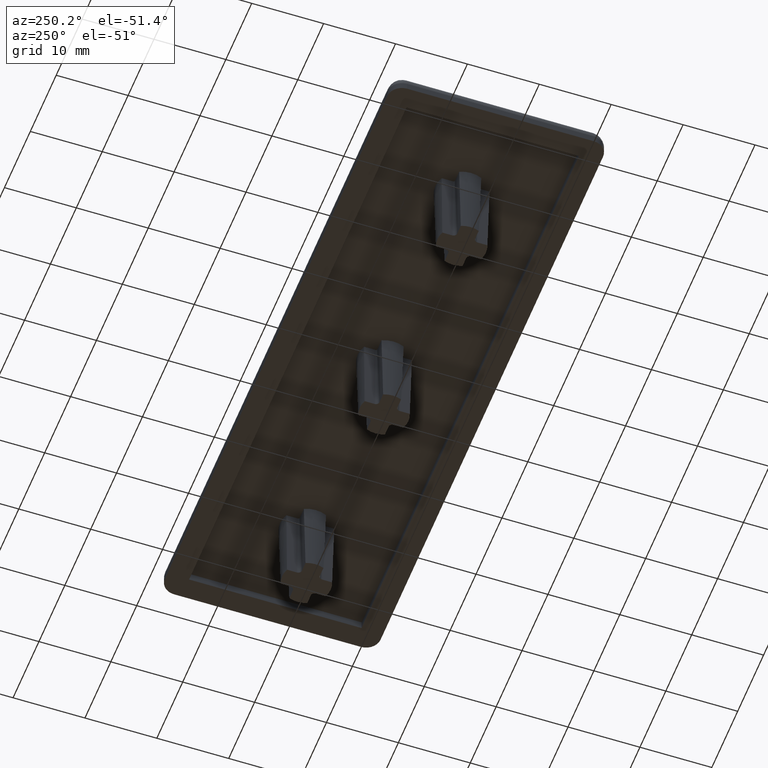
[diagram: clean part render]
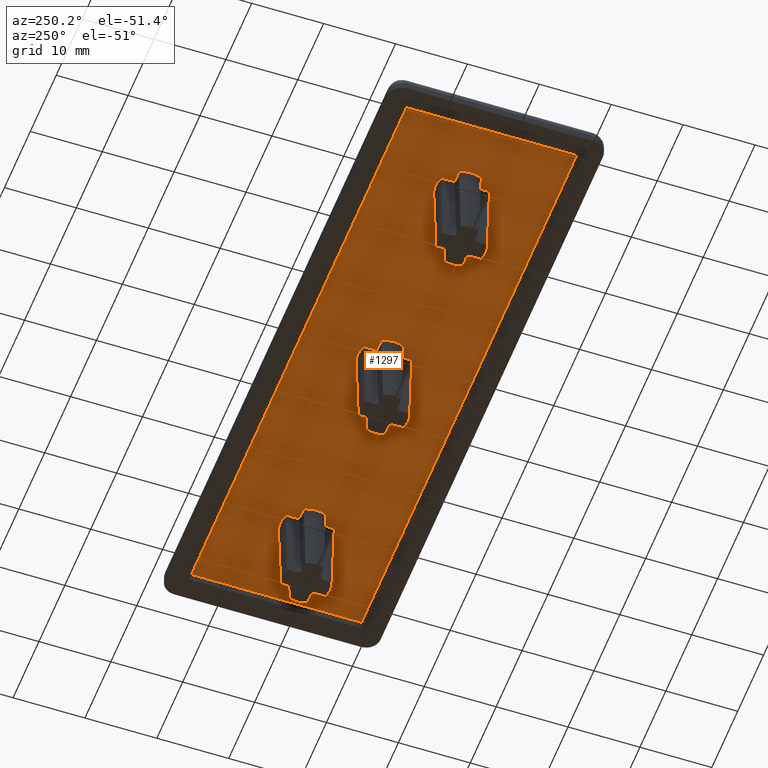
[diagram: same view with one face highlighted and labeled with its STEP entity id]
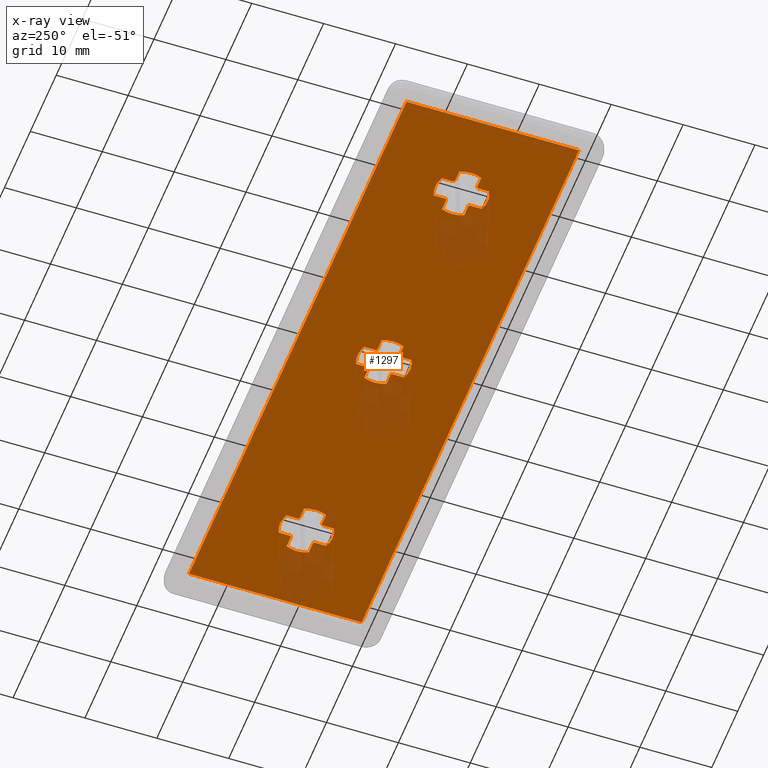
[diagram: x-ray of the same camera — body ghosted, the highlighted face saturated]
A machine part, auxiliary view. The second image highlights one B-rep face of the part: STEP entity #1297.
The next image is the same camera in x-ray: the body ghosted, the highlighted face saturated — about 7% of this face is hidden behind the body in this view.
In plain terms, the highlighted planar face has unit normal (0, 0, 1).
Its self-contained STEP definition (entity closure, byte-faithful):
#27=FACE_BOUND('',#224,.T.);
#28=FACE_BOUND('',#225,.T.);
#29=FACE_BOUND('',#226,.T.);
#87=PLANE('',#1421);
#149=FACE_OUTER_BOUND('',#223,.T.);
#223=EDGE_LOOP('',(#1093,#1094,#1095,#1096));
#224=EDGE_LOOP('',(#1097,#1098,#1099,#1100,#1101,#1102,#1103,#1104,#1105,
#1106,#1107,#1108,#1109,#1110,#1111,#1112));
#225=EDGE_LOOP('',(#1113,#1114,#1115,#1116,#1117,#1118,#1119,#1120,#1121,
#1122,#1123,#1124,#1125,#1126,#1127,#1128));
#226=EDGE_LOOP('',(#1129,#1130,#1131,#1132,#1133,#1134,#1135,#1136,#1137,
#1138,#1139,#1140,#1141,#1142,#1143,#1144));
#247=LINE('',#1849,#351);
#249=LINE('',#1865,#353);
#253=LINE('',#1877,#357);
#255=LINE('',#1893,#359);
#259=LINE('',#1905,#363);
#261=LINE('',#1921,#365);
#265=LINE('',#1933,#369);
#267=LINE('',#1948,#371);
#271=LINE('',#1962,#375);
#273=LINE('',#1978,#377);
#277=LINE('',#1990,#381);
#279=LINE('',#2006,#383);
#283=LINE('',#2018,#387);
#285=LINE('',#2034,#389);
#289=LINE('',#2046,#393);
#291=LINE('',#2061,#395);
#295=LINE('',#2075,#399);
#297=LINE('',#2091,#401);
#301=LINE('',#2103,#405);
#303=LINE('',#2119,#407);
#307=LINE('',#2131,#411);
#309=LINE('',#2147,#413);
#313=LINE('',#2159,#417);
#315=LINE('',#2174,#419);
#323=LINE('',#2193,#427);
#327=LINE('',#2200,#431);
#330=LINE('',#2206,#434);
#332=LINE('',#2209,#436);
#351=VECTOR('',#1467,1.5745024941123);
#353=VECTOR('',#1477,1.57450249411229);
#357=VECTOR('',#1489,1.5745024941123);
#359=VECTOR('',#1499,1.5745024941123);
#363=VECTOR('',#1511,1.57450249411236);
#365=VECTOR('',#1521,1.57450249411229);
#369=VECTOR('',#1533,1.5745024941123);
#371=VECTOR('',#1543,1.5745024941123);
#375=VECTOR('',#1557,1.5745024941123);
#377=VECTOR('',#1567,1.5745024941123);
#381=VECTOR('',#1579,1.5745024941123);
#383=VECTOR('',#1589,1.5745024941123);
#387=VECTOR('',#1601,1.57450249411237);
#389=VECTOR('',#1611,1.5745024941123);
#393=VECTOR('',#1623,1.5745024941123);
#395=VECTOR('',#1633,1.5745024941123);
#399=VECTOR('',#1647,1.5745024941123);
#401=VECTOR('',#1657,1.5745024941123);
#405=VECTOR('',#1669,1.5745024941123);
#407=VECTOR('',#1679,1.5745024941123);
#411=VECTOR('',#1691,1.57450249411237);
#413=VECTOR('',#1701,1.5745024941123);
#417=VECTOR('',#1713,1.5745024941123);
#419=VECTOR('',#1723,1.5745024941123);
#427=VECTOR('',#1737,24.);
#431=VECTOR('',#1743,84.);
#434=VECTOR('',#1748,24.);
#436=VECTOR('',#1752,84.);
#453=CIRCLE('',#1318,0.211954862738944);
#455=CIRCLE('',#1322,3.66304513726106);
#457=CIRCLE('',#1326,0.211954862738944);
#459=CIRCLE('',#1330,3.66304513726106);
#461=CIRCLE('',#1334,0.211954862738944);
#463=CIRCLE('',#1338,3.66304513726106);
#465=CIRCLE('',#1342,0.211954862738944);
#467=CIRCLE('',#1346,3.66304513726106);
#469=CIRCLE('',#1351,0.211954862738944);
#471=CIRCLE('',#1355,3.66304513726106);
#473=CIRCLE('',#1359,0.211954862738944);
#475=CIRCLE('',#1363,3.66304513726106);
#477=CIRCLE('',#1367,0.211954862738944);
#479=CIRCLE('',#1371,3.66304513726106);
#481=CIRCLE('',#1375,0.211954862738944);
#483=CIRCLE('',#1379,3.66304513726106);
#485=CIRCLE('',#1384,0.211954862738944);
#487=CIRCLE('',#1388,3.66304513726106);
#489=CIRCLE('',#1392,0.211954862738944);
#491=CIRCLE('',#1396,3.66304513726106);
#493=CIRCLE('',#1400,0.211954862738944);
#495=CIRCLE('',#1404,3.66304513726106);
#497=CIRCLE('',#1408,0.211954862738944);
#499=CIRCLE('',#1412,3.66304513726106);
#517=VERTEX_POINT('',#1839);
#518=VERTEX_POINT('',#1840);
#521=VERTEX_POINT('',#1848);
#523=VERTEX_POINT('',#1856);
#525=VERTEX_POINT('',#1864);
#527=VERTEX_POINT('',#1870);
#529=VERTEX_POINT('',#1876);
#531=VERTEX_POINT('',#1884);
#533=VERTEX_POINT('',#1892);
#535=VERTEX_POINT('',#1898);
#537=VERTEX_POINT('',#1904);
#539=VERTEX_POINT('',#1912);
#541=VERTEX_POINT('',#1920);
#543=VERTEX_POINT('',#1926);
#545=VERTEX_POINT('',#1932);
#547=VERTEX_POINT('',#1940);
#549=VERTEX_POINT('',#1952);
#550=VERTEX_POINT('',#1953);
#553=VERTEX_POINT('',#1961);
#555=VERTEX_POINT('',#1969);
#557=VERTEX_POINT('',#1977);
#559=VERTEX_POINT('',#1983);
#561=VERTEX_POINT('',#1989);
#563=VERTEX_POINT('',#1997);
#565=VERTEX_POINT('',#2005);
#567=VERTEX_POINT('',#2011);
#569=VERTEX_POINT('',#2017);
#571=VERTEX_POINT('',#2025);
#573=VERTEX_POINT('',#2033);
#575=VERTEX_POINT('',#2039);
#577=VERTEX_POINT('',#2045);
#579=VERTEX_POINT('',#2053);
#581=VERTEX_POINT('',#2065);
#582=VERTEX_POINT('',#2066);
#585=VERTEX_POINT('',#2074);
#587=VERTEX_POINT('',#2082);
#589=VERTEX_POINT('',#2090);
#591=VERTEX_POINT('',#2096);
#593=VERTEX_POINT('',#2102);
#595=VERTEX_POINT('',#2110);
#597=VERTEX_POINT('',#2118);
#599=VERTEX_POINT('',#2124);
#601=VERTEX_POINT('',#2130);
#603=VERTEX_POINT('',#2138);
#605=VERTEX_POINT('',#2146);
#607=VERTEX_POINT('',#2152);
#609=VERTEX_POINT('',#2158);
#611=VERTEX_POINT('',#2166);
#619=VERTEX_POINT('',#2190);
#620=VERTEX_POINT('',#2192);
#622=VERTEX_POINT('',#2198);
#624=VERTEX_POINT('',#2204);
#641=EDGE_CURVE('',#517,#518,#453,.T.);
#645=EDGE_CURVE('',#521,#517,#247,.T.);
#648=EDGE_CURVE('',#523,#521,#455,.T.);
#651=EDGE_CURVE('',#525,#523,#249,.T.);
#654=EDGE_CURVE('',#527,#525,#457,.T.);
#657=EDGE_CURVE('',#529,#527,#253,.T.);
#660=EDGE_CURVE('',#531,#529,#459,.T.);
#663=EDGE_CURVE('',#533,#531,#255,.T.);
#666=EDGE_CURVE('',#535,#533,#461,.T.);
#669=EDGE_CURVE('',#537,#535,#259,.T.);
#672=EDGE_CURVE('',#539,#537,#463,.T.);
#675=EDGE_CURVE('',#541,#539,#261,.T.);
#678=EDGE_CURVE('',#543,#541,#465,.T.);
#681=EDGE_CURVE('',#545,#543,#265,.T.);
#684=EDGE_CURVE('',#547,#545,#467,.T.);
#687=EDGE_CURVE('',#518,#547,#267,.T.);
#689=EDGE_CURVE('',#549,#550,#469,.T.);
#693=EDGE_CURVE('',#553,#549,#271,.T.);
#696=EDGE_CURVE('',#555,#553,#471,.T.);
#699=EDGE_CURVE('',#557,#555,#273,.T.);
#702=EDGE_CURVE('',#559,#557,#473,.T.);
#705=EDGE_CURVE('',#561,#559,#277,.T.);
#708=EDGE_CURVE('',#563,#561,#475,.T.);
#711=EDGE_CURVE('',#565,#563,#279,.T.);
#714=EDGE_CURVE('',#567,#565,#477,.T.);
#717=EDGE_CURVE('',#569,#567,#283,.T.);
#720=EDGE_CURVE('',#571,#569,#479,.T.);
#723=EDGE_CURVE('',#573,#571,#285,.T.);
#726=EDGE_CURVE('',#575,#573,#481,.T.);
#729=EDGE_CURVE('',#577,#575,#289,.T.);
#732=EDGE_CURVE('',#579,#577,#483,.T.);
#735=EDGE_CURVE('',#550,#579,#291,.T.);
#737=EDGE_CURVE('',#581,#582,#485,.T.);
#741=EDGE_CURVE('',#585,#581,#295,.T.);
#744=EDGE_CURVE('',#587,#585,#487,.T.);
#747=EDGE_CURVE('',#589,#587,#297,.T.);
#750=EDGE_CURVE('',#591,#589,#489,.T.);
#753=EDGE_CURVE('',#593,#591,#301,.T.);
#756=EDGE_CURVE('',#595,#593,#491,.T.);
#759=EDGE_CURVE('',#597,#595,#303,.T.);
#762=EDGE_CURVE('',#599,#597,#493,.T.);
#765=EDGE_CURVE('',#601,#599,#307,.T.);
#768=EDGE_CURVE('',#603,#601,#495,.T.);
#771=EDGE_CURVE('',#605,#603,#309,.T.);
#774=EDGE_CURVE('',#607,#605,#497,.T.);
#777=EDGE_CURVE('',#609,#607,#313,.T.);
#780=EDGE_CURVE('',#611,#609,#499,.T.);
#783=EDGE_CURVE('',#582,#611,#315,.T.);
#791=EDGE_CURVE('',#619,#620,#323,.T.);
#795=EDGE_CURVE('',#622,#619,#327,.T.);
#798=EDGE_CURVE('',#624,#622,#330,.T.);
#800=EDGE_CURVE('',#620,#624,#332,.T.);
#1093=ORIENTED_EDGE('',*,*,#800,.F.);
#1094=ORIENTED_EDGE('',*,*,#791,.F.);
#1095=ORIENTED_EDGE('',*,*,#795,.F.);
#1096=ORIENTED_EDGE('',*,*,#798,.F.);
#1097=ORIENTED_EDGE('',*,*,#641,.T.);
#1098=ORIENTED_EDGE('',*,*,#687,.T.);
#1099=ORIENTED_EDGE('',*,*,#684,.T.);
#1100=ORIENTED_EDGE('',*,*,#681,.T.);
#1101=ORIENTED_EDGE('',*,*,#678,.T.);
#1102=ORIENTED_EDGE('',*,*,#675,.T.);
#1103=ORIENTED_EDGE('',*,*,#672,.T.);
#1104=ORIENTED_EDGE('',*,*,#669,.T.);
#1105=ORIENTED_EDGE('',*,*,#666,.T.);
#1106=ORIENTED_EDGE('',*,*,#663,.T.);
#1107=ORIENTED_EDGE('',*,*,#660,.T.);
#1108=ORIENTED_EDGE('',*,*,#657,.T.);
#1109=ORIENTED_EDGE('',*,*,#654,.T.);
#1110=ORIENTED_EDGE('',*,*,#651,.T.);
#1111=ORIENTED_EDGE('',*,*,#648,.T.);
#1112=ORIENTED_EDGE('',*,*,#645,.T.);
#1113=ORIENTED_EDGE('',*,*,#689,.T.);
#1114=ORIENTED_EDGE('',*,*,#735,.T.);
#1115=ORIENTED_EDGE('',*,*,#732,.T.);
#1116=ORIENTED_EDGE('',*,*,#729,.T.);
#1117=ORIENTED_EDGE('',*,*,#726,.T.);
#1118=ORIENTED_EDGE('',*,*,#723,.T.);
#1119=ORIENTED_EDGE('',*,*,#720,.T.);
#1120=ORIENTED_EDGE('',*,*,#717,.T.);
#1121=ORIENTED_EDGE('',*,*,#714,.T.);
#1122=ORIENTED_EDGE('',*,*,#711,.T.);
#1123=ORIENTED_EDGE('',*,*,#708,.T.);
#1124=ORIENTED_EDGE('',*,*,#705,.T.);
#1125=ORIENTED_EDGE('',*,*,#702,.T.);
#1126=ORIENTED_EDGE('',*,*,#699,.T.);
#1127=ORIENTED_EDGE('',*,*,#696,.T.);
#1128=ORIENTED_EDGE('',*,*,#693,.T.);
#1129=ORIENTED_EDGE('',*,*,#759,.T.);
#1130=ORIENTED_EDGE('',*,*,#756,.T.);
#1131=ORIENTED_EDGE('',*,*,#753,.T.);
#1132=ORIENTED_EDGE('',*,*,#750,.T.);
#1133=ORIENTED_EDGE('',*,*,#747,.T.);
#1134=ORIENTED_EDGE('',*,*,#744,.T.);
#1135=ORIENTED_EDGE('',*,*,#741,.T.);
#1136=ORIENTED_EDGE('',*,*,#737,.T.);
#1137=ORIENTED_EDGE('',*,*,#783,.T.);
#1138=ORIENTED_EDGE('',*,*,#780,.T.);
#1139=ORIENTED_EDGE('',*,*,#777,.T.);
#1140=ORIENTED_EDGE('',*,*,#774,.T.);
#1141=ORIENTED_EDGE('',*,*,#771,.T.);
#1142=ORIENTED_EDGE('',*,*,#768,.T.);
#1143=ORIENTED_EDGE('',*,*,#765,.T.);
#1144=ORIENTED_EDGE('',*,*,#762,.T.);
#1297=ADVANCED_FACE('',(#149,#27,#28,#29),#87,.F.);
#1318=AXIS2_PLACEMENT_3D('',#1841,#1459,#1460);
#1322=AXIS2_PLACEMENT_3D('',#1857,#1471,#1472);
#1326=AXIS2_PLACEMENT_3D('',#1871,#1482,#1483);
#1330=AXIS2_PLACEMENT_3D('',#1885,#1493,#1494);
#1334=AXIS2_PLACEMENT_3D('',#1899,#1504,#1505);
#1338=AXIS2_PLACEMENT_3D('',#1913,#1515,#1516);
#1342=AXIS2_PLACEMENT_3D('',#1927,#1526,#1527);
#1346=AXIS2_PLACEMENT_3D('',#1941,#1537,#1538);
#1351=AXIS2_PLACEMENT_3D('',#1954,#1549,#1550);
#1355=AXIS2_PLACEMENT_3D('',#1970,#1561,#1562);
#1359=AXIS2_PLACEMENT_3D('',#1984,#1572,#1573);
#1363=AXIS2_PLACEMENT_3D('',#1998,#1583,#1584);
#1367=AXIS2_PLACEMENT_3D('',#2012,#1594,#1595);
#1371=AXIS2_PLACEMENT_3D('',#2026,#1605,#1606);
#1375=AXIS2_PLACEMENT_3D('',#2040,#1616,#1617);
#1379=AXIS2_PLACEMENT_3D('',#2054,#1627,#1628);
#1384=AXIS2_PLACEMENT_3D('',#2067,#1639,#1640);
#1388=AXIS2_PLACEMENT_3D('',#2083,#1651,#1652);
#1392=AXIS2_PLACEMENT_3D('',#2097,#1662,#1663);
#1396=AXIS2_PLACEMENT_3D('',#2111,#1673,#1674);
#1400=AXIS2_PLACEMENT_3D('',#2125,#1684,#1685);
#1404=AXIS2_PLACEMENT_3D('',#2139,#1695,#1696);
#1408=AXIS2_PLACEMENT_3D('',#2153,#1706,#1707);
#1412=AXIS2_PLACEMENT_3D('',#2167,#1717,#1718);
#1421=AXIS2_PLACEMENT_3D('',#2210,#1753,#1754);
#1459=DIRECTION('center_axis',(0.,0.,-1.));
#1460=DIRECTION('ref_axis',(0.,1.,0.));
#1467=DIRECTION('',(-1.,-2.00403575735521E-16,0.));
#1471=DIRECTION('center_axis',(0.,0.,1.));
#1472=DIRECTION('ref_axis',(-1.,0.,0.));
#1477=DIRECTION('',(1.,-2.00403575735522E-16,0.));
#1482=DIRECTION('center_axis',(0.,0.,-1.));
#1483=DIRECTION('ref_axis',(1.,0.,0.));
#1489=DIRECTION('',(0.,1.,0.));
#1493=DIRECTION('center_axis',(0.,0.,1.));
#1494=DIRECTION('ref_axis',(-1.,0.,0.));
#1499=DIRECTION('',(0.,-1.,0.));
#1504=DIRECTION('center_axis',(0.,0.,-1.));
#1505=DIRECTION('ref_axis',(0.,-1.,0.));
#1511=DIRECTION('',(1.,0.,0.));
#1515=DIRECTION('center_axis',(0.,0.,1.));
#1516=DIRECTION('ref_axis',(-1.,0.,0.));
#1521=DIRECTION('',(-1.,4.00807151471042E-16,0.));
#1526=DIRECTION('center_axis',(0.,0.,-1.));
#1527=DIRECTION('ref_axis',(-1.,0.,0.));
#1533=DIRECTION('',(0.,-1.,0.));
#1537=DIRECTION('center_axis',(0.,0.,1.));
#1538=DIRECTION('ref_axis',(-1.,0.,0.));
#1543=DIRECTION('',(0.,1.,0.));
#1549=DIRECTION('center_axis',(0.,0.,-1.));
#1550=DIRECTION('ref_axis',(0.,1.,0.));
#1557=DIRECTION('',(-1.,-2.00403575735521E-16,0.));
#1561=DIRECTION('center_axis',(0.,0.,1.));
#1562=DIRECTION('ref_axis',(-1.,0.,0.));
#1567=DIRECTION('',(1.,-2.00403575735522E-16,0.));
#1572=DIRECTION('center_axis',(0.,0.,-1.));
#1573=DIRECTION('ref_axis',(1.,0.,0.));
#1579=DIRECTION('',(0.,1.,0.));
#1583=DIRECTION('center_axis',(0.,0.,1.));
#1584=DIRECTION('ref_axis',(-1.,0.,0.));
#1589=DIRECTION('',(0.,-1.,0.));
#1594=DIRECTION('center_axis',(0.,0.,-1.));
#1595=DIRECTION('ref_axis',(0.,-1.,0.));
#1601=DIRECTION('',(1.,0.,0.));
#1605=DIRECTION('center_axis',(0.,0.,1.));
#1606=DIRECTION('ref_axis',(-1.,0.,0.));
#1611=DIRECTION('',(-1.,4.00807151471042E-16,0.));
#1616=DIRECTION('center_axis',(0.,0.,-1.));
#1617=DIRECTION('ref_axis',(-1.,0.,0.));
#1623=DIRECTION('',(0.,-1.,0.));
#1627=DIRECTION('center_axis',(0.,0.,1.));
#1628=DIRECTION('ref_axis',(-1.,0.,0.));
#1633=DIRECTION('',(0.,1.,0.));
#1639=DIRECTION('center_axis',(0.,0.,-1.));
#1640=DIRECTION('ref_axis',(0.,1.,0.));
#1647=DIRECTION('',(-1.,-2.00403575735521E-16,0.));
#1651=DIRECTION('center_axis',(0.,0.,1.));
#1652=DIRECTION('ref_axis',(-1.,0.,0.));
#1657=DIRECTION('',(1.,-2.00403575735522E-16,0.));
#1662=DIRECTION('center_axis',(0.,0.,-1.));
#1663=DIRECTION('ref_axis',(1.,0.,0.));
#1669=DIRECTION('',(0.,1.,0.));
#1673=DIRECTION('center_axis',(0.,0.,1.));
#1674=DIRECTION('ref_axis',(-1.,0.,0.));
#1679=DIRECTION('',(0.,-1.,0.));
#1684=DIRECTION('center_axis',(0.,0.,-1.));
#1685=DIRECTION('ref_axis',(0.,-1.,0.));
#1691=DIRECTION('',(1.,0.,0.));
#1695=DIRECTION('center_axis',(0.,0.,1.));
#1696=DIRECTION('ref_axis',(-1.,0.,0.));
#1701=DIRECTION('',(-1.,4.00807151471042E-16,0.));
#1706=DIRECTION('center_axis',(0.,0.,-1.));
#1707=DIRECTION('ref_axis',(-1.,0.,0.));
#1713=DIRECTION('',(0.,-1.,0.));
#1717=DIRECTION('center_axis',(0.,0.,1.));
#1718=DIRECTION('ref_axis',(-1.,0.,0.));
#1723=DIRECTION('',(0.,1.,0.));
#1737=DIRECTION('',(0.,1.,0.));
#1743=DIRECTION('',(1.,-2.37904933848248E-16,0.));
#1748=DIRECTION('',(0.,-1.,0.));
#1752=DIRECTION('',(-1.,1.05735526154777E-16,0.));
#1753=DIRECTION('center_axis',(0.,0.,1.));
#1754=DIRECTION('ref_axis',(1.,0.,0.));
#1839=CARTESIAN_POINT('',(-28.25,1.53804513726106,1.2));
#1840=CARTESIAN_POINT('',(-28.4619548627389,1.75,1.2));
#1841=CARTESIAN_POINT('Origin',(-28.25,1.75,1.2));
#1848=CARTESIAN_POINT('',(-26.6754975058877,1.53804513726106,1.2));
#1849=CARTESIAN_POINT('',(-14.125,1.53804513726106,1.2));
#1856=CARTESIAN_POINT('',(-26.6754975058877,-1.53804513726106,1.2));
#1857=CARTESIAN_POINT('Origin',(-30.,0.,1.2));
#1864=CARTESIAN_POINT('',(-28.25,-1.53804513726106,1.2));
#1865=CARTESIAN_POINT('',(-13.4325079745019,-1.53804513726106,1.2));
#1870=CARTESIAN_POINT('',(-28.4619548627389,-1.75,1.2));
#1871=CARTESIAN_POINT('Origin',(-28.25,-1.75,1.2));
#1876=CARTESIAN_POINT('',(-28.4619548627389,-3.3245024941123,1.2));
#1877=CARTESIAN_POINT('',(-28.4619548627389,-0.875000000000001,1.2));
#1884=CARTESIAN_POINT('',(-31.5380451372611,-3.3245024941123,1.2));
#1885=CARTESIAN_POINT('Origin',(-30.,0.,1.2));
#1892=CARTESIAN_POINT('',(-31.5380451372611,-1.75,1.2));
#1893=CARTESIAN_POINT('',(-31.5380451372611,-1.56749202549806,1.2));
#1898=CARTESIAN_POINT('',(-31.75,-1.53804513726106,1.2));
#1899=CARTESIAN_POINT('Origin',(-31.75,-1.75,1.2));
#1904=CARTESIAN_POINT('',(-33.3245024941124,-1.53804513726106,1.2));
#1905=CARTESIAN_POINT('',(-15.875,-1.53804513726106,1.2));
#1912=CARTESIAN_POINT('',(-33.3245024941123,1.53804513726106,1.2));
#1913=CARTESIAN_POINT('Origin',(-30.,0.,1.2));
#1920=CARTESIAN_POINT('',(-31.75,1.53804513726106,1.2));
#1921=CARTESIAN_POINT('',(-16.5674920254981,1.53804513726105,1.2));
#1926=CARTESIAN_POINT('',(-31.5380451372611,1.75,1.2));
#1927=CARTESIAN_POINT('Origin',(-31.75,1.75,1.2));
#1932=CARTESIAN_POINT('',(-31.5380451372611,3.3245024941123,1.2));
#1933=CARTESIAN_POINT('',(-31.5380451372611,0.874999999999999,1.2));
#1940=CARTESIAN_POINT('',(-28.4619548627389,3.3245024941123,1.2));
#1941=CARTESIAN_POINT('Origin',(-30.,0.,1.2));
#1948=CARTESIAN_POINT('',(-28.4619548627389,1.56749202549806,1.2));
#1952=CARTESIAN_POINT('',(31.75,1.53804513726106,1.2));
#1953=CARTESIAN_POINT('',(31.5380451372611,1.75,1.2));
#1954=CARTESIAN_POINT('Origin',(31.75,1.75,1.2));
#1961=CARTESIAN_POINT('',(33.3245024941123,1.53804513726106,1.2));
#1962=CARTESIAN_POINT('',(15.875,1.53804513726105,1.2));
#1969=CARTESIAN_POINT('',(33.3245024941123,-1.53804513726106,1.2));
#1970=CARTESIAN_POINT('Origin',(30.,0.,1.2));
#1977=CARTESIAN_POINT('',(31.75,-1.53804513726106,1.2));
#1978=CARTESIAN_POINT('',(16.5674920254981,-1.53804513726105,1.2));
#1983=CARTESIAN_POINT('',(31.5380451372611,-1.75,1.2));
#1984=CARTESIAN_POINT('Origin',(31.75,-1.75,1.2));
#1989=CARTESIAN_POINT('',(31.5380451372611,-3.3245024941123,1.2));
#1990=CARTESIAN_POINT('',(31.5380451372611,-0.875000000000001,1.2));
#1997=CARTESIAN_POINT('',(28.4619548627389,-3.3245024941123,1.2));
#1998=CARTESIAN_POINT('Origin',(30.,0.,1.2));
#2005=CARTESIAN_POINT('',(28.4619548627389,-1.75,1.2));
#2006=CARTESIAN_POINT('',(28.4619548627389,-1.56749202549806,1.2));
#2011=CARTESIAN_POINT('',(28.25,-1.53804513726106,1.2));
#2012=CARTESIAN_POINT('Origin',(28.25,-1.75,1.2));
#2017=CARTESIAN_POINT('',(26.6754975058876,-1.53804513726106,1.2));
#2018=CARTESIAN_POINT('',(14.125,-1.53804513726106,1.2));
#2025=CARTESIAN_POINT('',(26.6754975058877,1.53804513726106,1.2));
#2026=CARTESIAN_POINT('Origin',(30.,0.,1.2));
#2033=CARTESIAN_POINT('',(28.25,1.53804513726106,1.2));
#2034=CARTESIAN_POINT('',(13.4325079745019,1.53804513726106,1.2));
#2039=CARTESIAN_POINT('',(28.4619548627389,1.75,1.2));
#2040=CARTESIAN_POINT('Origin',(28.25,1.75,1.2));
#2045=CARTESIAN_POINT('',(28.4619548627389,3.3245024941123,1.2));
#2046=CARTESIAN_POINT('',(28.4619548627389,0.874999999999999,1.2));
#2053=CARTESIAN_POINT('',(31.5380451372611,3.3245024941123,1.2));
#2054=CARTESIAN_POINT('Origin',(30.,0.,1.2));
#2061=CARTESIAN_POINT('',(31.538045137261,1.56749202549806,1.2));
#2065=CARTESIAN_POINT('',(1.75,1.53804513726106,1.2));
#2066=CARTESIAN_POINT('',(1.53804513726105,1.75,1.2));
#2067=CARTESIAN_POINT('Origin',(1.75,1.75,1.2));
#2074=CARTESIAN_POINT('',(3.3245024941123,1.53804513726106,1.2));
#2075=CARTESIAN_POINT('',(0.875000000000002,1.53804513726106,1.2));
#2082=CARTESIAN_POINT('',(3.3245024941123,-1.53804513726106,1.2));
#2083=CARTESIAN_POINT('Origin',(0.,0.,1.2));
#2090=CARTESIAN_POINT('',(1.75,-1.53804513726106,1.2));
#2091=CARTESIAN_POINT('',(1.56749202549806,-1.53804513726106,1.2));
#2096=CARTESIAN_POINT('',(1.53804513726105,-1.75,1.2));
#2097=CARTESIAN_POINT('Origin',(1.75,-1.75,1.2));
#2102=CARTESIAN_POINT('',(1.53804513726105,-3.3245024941123,1.2));
#2103=CARTESIAN_POINT('',(1.53804513726105,-0.875000000000001,1.2));
#2110=CARTESIAN_POINT('',(-1.53804513726105,-3.3245024941123,1.2));
#2111=CARTESIAN_POINT('Origin',(0.,0.,1.2));
#2118=CARTESIAN_POINT('',(-1.53804513726105,-1.75,1.2));
#2119=CARTESIAN_POINT('',(-1.53804513726105,-1.56749202549806,1.2));
#2124=CARTESIAN_POINT('',(-1.75,-1.53804513726106,1.2));
#2125=CARTESIAN_POINT('Origin',(-1.75,-1.75,1.2));
#2130=CARTESIAN_POINT('',(-3.32450249411237,-1.53804513726106,1.2));
#2131=CARTESIAN_POINT('',(-0.874999999999995,-1.53804513726106,1.2));
#2138=CARTESIAN_POINT('',(-3.3245024941123,1.53804513726106,1.2));
#2139=CARTESIAN_POINT('Origin',(0.,0.,1.2));
#2146=CARTESIAN_POINT('',(-1.75,1.53804513726106,1.2));
#2147=CARTESIAN_POINT('',(-1.56749202549805,1.53804513726106,1.2));
#2152=CARTESIAN_POINT('',(-1.53804513726105,1.75,1.2));
#2153=CARTESIAN_POINT('Origin',(-1.75,1.75,1.2));
#2158=CARTESIAN_POINT('',(-1.53804513726105,3.3245024941123,1.2));
#2159=CARTESIAN_POINT('',(-1.53804513726105,0.874999999999999,1.2));
#2166=CARTESIAN_POINT('',(1.53804513726105,3.3245024941123,1.2));
#2167=CARTESIAN_POINT('Origin',(0.,0.,1.2));
#2174=CARTESIAN_POINT('',(1.53804513726105,1.56749202549806,1.2));
#2190=CARTESIAN_POINT('',(42.,-12.,1.2));
#2192=CARTESIAN_POINT('',(42.,12.,1.2));
#2193=CARTESIAN_POINT('',(42.,12.,1.2));
#2198=CARTESIAN_POINT('',(-42.,-12.,1.2));
#2200=CARTESIAN_POINT('',(42.,-12.,1.2));
#2204=CARTESIAN_POINT('',(-42.,12.,1.2));
#2206=CARTESIAN_POINT('',(-42.,-12.,1.2));
#2209=CARTESIAN_POINT('',(-42.,12.,1.2));
#2210=CARTESIAN_POINT('Origin',(8.88178419700125E-15,-2.22044604925031E-15,
1.2));